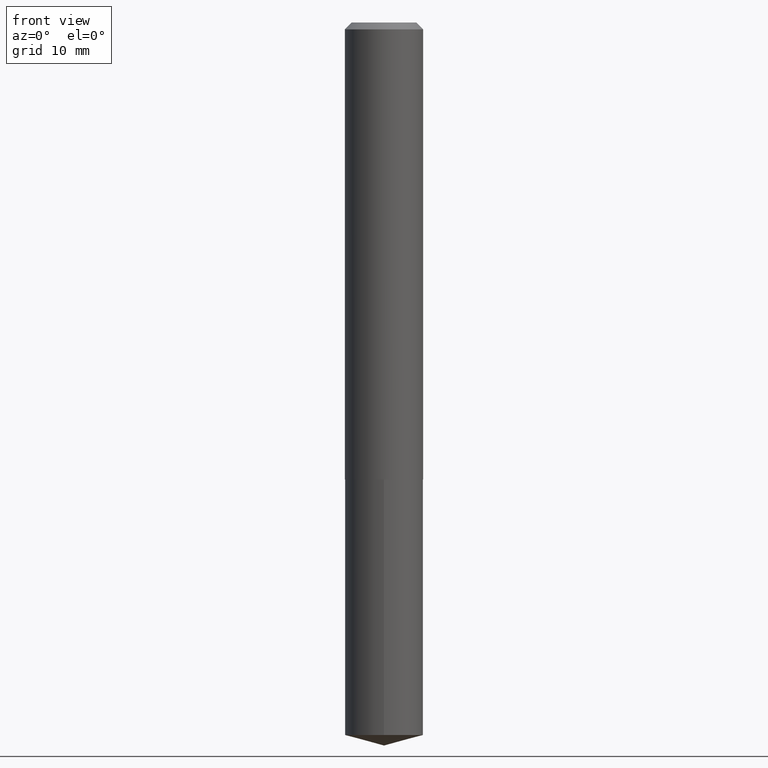
[diagram: clean part render]
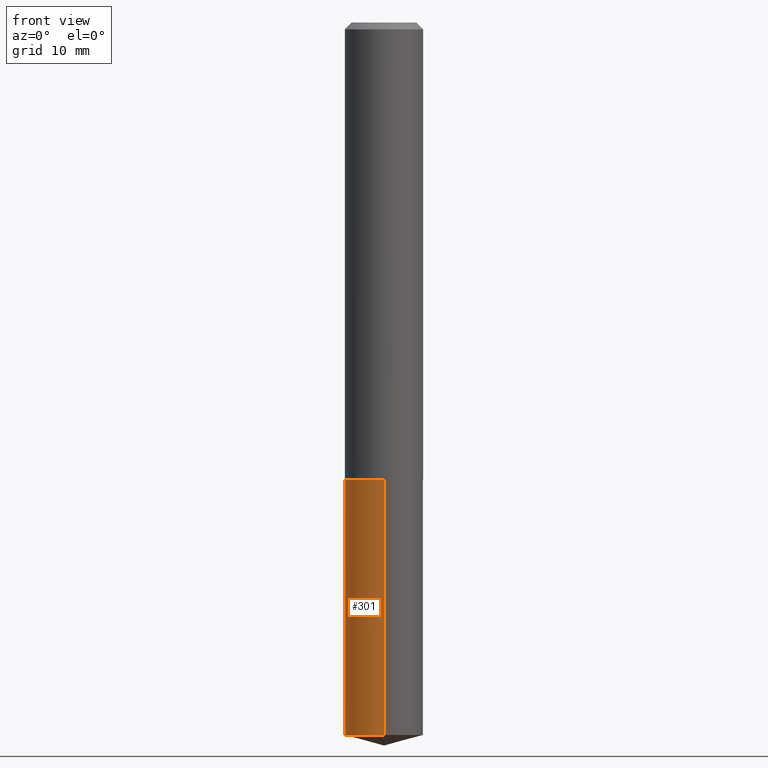
[diagram: same view with one face highlighted and labeled with its STEP entity id]
A machine part, front view. The second image highlights one B-rep face of the part: STEP entity #301.
In plain terms, the highlighted cylindrical surface (partial cylindrical patch) has radius 4.5504 mm, axis along (-0, 0, 1).
Its self-contained STEP definition (entity closure, byte-faithful):
#2 = ORIENTED_EDGE ( 'NONE', *, *, #243, .T. ) ;
#15 = VECTOR ( 'NONE', #354, 39.37007874015748143 ) ;
#27 = CARTESIAN_POINT ( 'NONE',  ( -1.250997763707443541E-15, -0.1791500000000073312, -2.090599999999999792 ) ) ;
#28 = CARTESIAN_POINT ( 'NONE',  ( 5.112497086210647566E-29, -7.299290886985481023E-15, -2.090600000000000236 ) ) ;
#36 = CIRCLE ( 'NONE', #376, 0.1791500000000000314 ) ;
#38 = ORIENTED_EDGE ( 'NONE', *, *, #228, .F. ) ;
#45 = VERTEX_POINT ( 'NONE', #283 ) ;
#52 = LINE ( 'NONE', #27, #15 ) ;
#54 = CARTESIAN_POINT ( 'NONE',  ( 1.272937311114270588E-15, 0.1791499999999927040, -2.090600000000001124 ) ) ;
#57 = DIRECTION ( 'NONE',  ( -6.982962677686265133E-15, -1.000000000000000000, 3.049788438363675772E-15 ) ) ;
#59 = DIRECTION ( 'NONE',  ( -2.445316547936515157E-29, 3.491699381321172837E-15, 1.000000000000000000 ) ) ;
#69 = ORIENTED_EDGE ( 'NONE', *, *, #324, .F. ) ;
#82 = CARTESIAN_POINT ( 'NONE',  ( 5.112497086210647566E-29, -7.299290886985481023E-15, -2.090600000000000236 ) ) ;
#131 = VERTEX_POINT ( 'NONE', #348 ) ;
#142 = DIRECTION ( 'NONE',  ( -2.445316547936515157E-29, 3.491699381321172837E-15, 1.000000000000000000 ) ) ;
#170 = DIRECTION ( 'NONE',  ( -2.445316547936515157E-29, 3.491699381321172837E-15, 1.000000000000000000 ) ) ;
#171 = CARTESIAN_POINT ( 'NONE',  ( 1.272937311114299381E-15, 0.1791499999999886794, -3.259096902175965926 ) ) ;
#183 = VERTEX_POINT ( 'NONE', #389 ) ;
#185 = CIRCLE ( 'NONE', #250, 0.1791500000000000314 ) ;
#202 = VECTOR ( 'NONE', #142, 39.37007874015748143 ) ;
#205 = CARTESIAN_POINT ( 'NONE',  ( 7.969841897314090708E-29, -1.137933079738900462E-14, -3.259096902175965482 ) ) ;
#228 = EDGE_CURVE ( 'NONE', #45, #183, #36, .T. ) ;
#229 = CYLINDRICAL_SURFACE ( 'NONE', #291, 0.1791500000000000314 ) ;
#236 = EDGE_CURVE ( 'NONE', #244, #131, #185, .T. ) ;
#243 = EDGE_CURVE ( 'NONE', #131, #183, #52, .T. ) ;
#244 = VERTEX_POINT ( 'NONE', #171 ) ;
#250 = AXIS2_PLACEMENT_3D ( 'NONE', #205, #59, #385 ) ;
#260 = DIRECTION ( 'NONE',  ( -2.445316547936515157E-29, 3.491699381321172837E-15, 1.000000000000000000 ) ) ;
#283 = CARTESIAN_POINT ( 'NONE',  ( 1.272937311114299184E-15, 0.1791499999999927040, -2.090600000000001124 ) ) ;
#290 = ORIENTED_EDGE ( 'NONE', *, *, #236, .T. ) ;
#291 = AXIS2_PLACEMENT_3D ( 'NONE', #28, #260, #57 ) ;
#295 = FACE_OUTER_BOUND ( 'NONE', #363, .T. ) ;
#297 = DIRECTION ( 'NONE',  ( -6.982962677686265133E-15, -1.000000000000000000, 3.049788438363675772E-15 ) ) ;
#301 = ADVANCED_FACE ( 'NONE', ( #295 ), #229, .T. ) ;
#320 = LINE ( 'NONE', #54, #202 ) ;
#324 = EDGE_CURVE ( 'NONE', #244, #45, #320, .T. ) ;
#348 = CARTESIAN_POINT ( 'NONE',  ( -1.250997763707415339E-15, -0.1791500000000114667, -3.259096902175965038 ) ) ;
#354 = DIRECTION ( 'NONE',  ( -2.445316547936515157E-29, 3.491699381321172837E-15, 1.000000000000000000 ) ) ;
#363 = EDGE_LOOP ( 'NONE', ( #69, #290, #2, #38 ) ) ;
#376 = AXIS2_PLACEMENT_3D ( 'NONE', #82, #170, #297 ) ;
#385 = DIRECTION ( 'NONE',  ( -6.982962677686265133E-15, -1.000000000000000000, 3.049788438363675772E-15 ) ) ;
#389 = CARTESIAN_POINT ( 'NONE',  ( -1.250997763707443541E-15, -0.1791500000000073312, -2.090599999999999792 ) ) ;